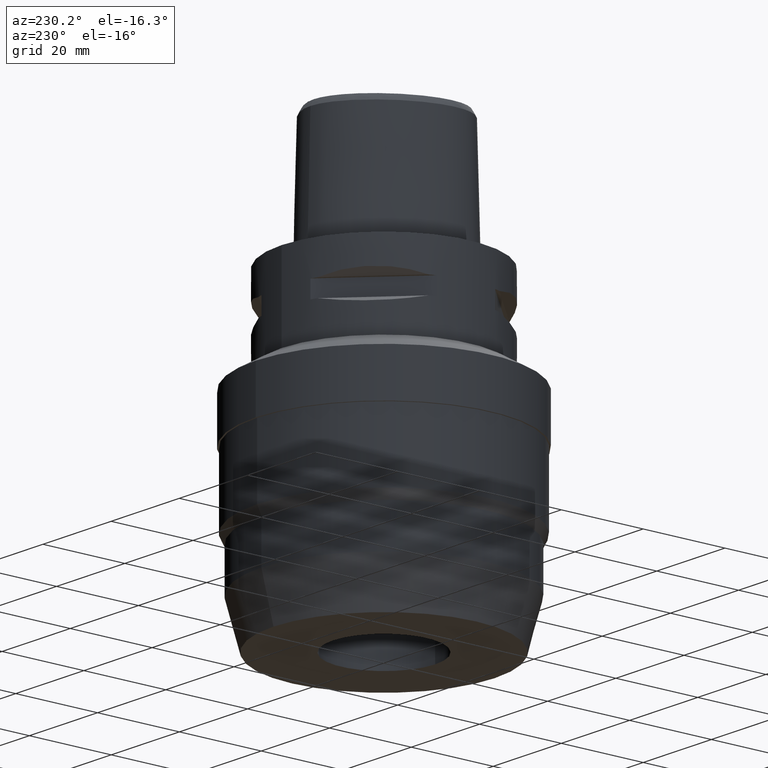
[diagram: clean part render]
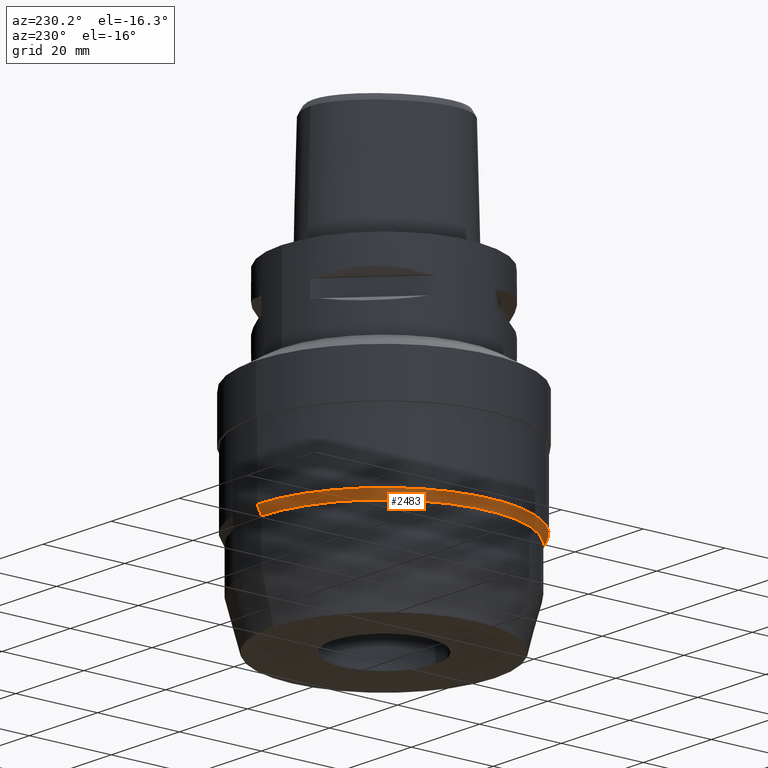
[diagram: same view with one face highlighted and labeled with its STEP entity id]
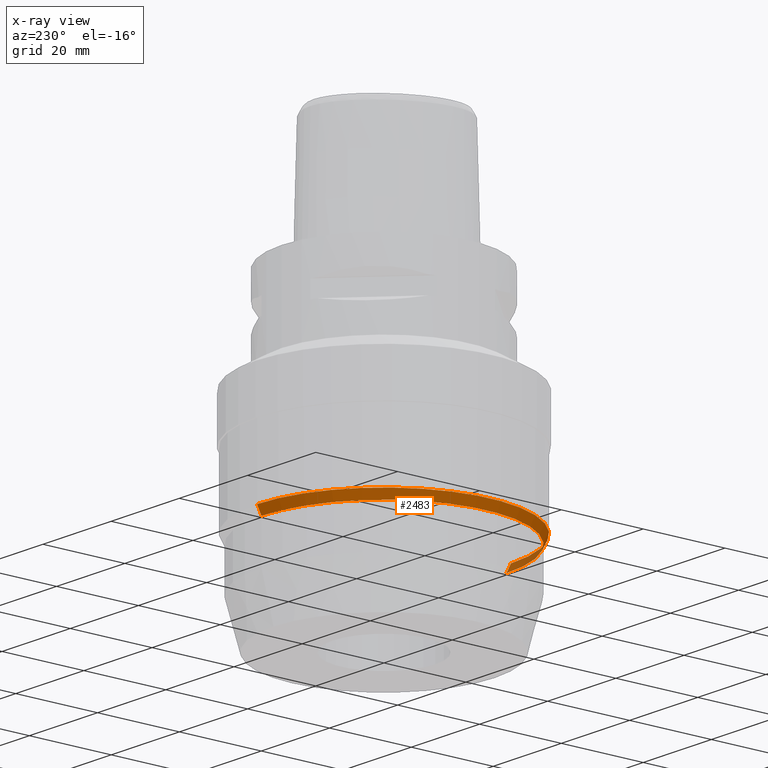
[diagram: x-ray of the same camera — body ghosted, the highlighted face saturated]
A machine part, auxiliary view. The second image highlights one B-rep face of the part: STEP entity #2483.
The next image is the same camera in x-ray: the body ghosted, the highlighted face saturated — about 6% of this face is hidden behind the body in this view.
In plain terms, the highlighted conical surface has half-angle 26.7 deg.
Its self-contained STEP definition (entity closure, byte-faithful):
#598=DIRECTION('',(0.E0,-4.493189986155E-1,-8.933713883280E-1));
#599=VECTOR('',#598,2.336869803494E0);
#600=CARTESIAN_POINT('',(0.E0,3.1E1,-5.181230737931E1));
#601=LINE('',#600,#599);
#621=CARTESIAN_POINT('',(0.E0,0.E0,-5.181230737931E1));
#622=DIRECTION('',(0.E0,0.E0,1.E0));
#623=DIRECTION('',(0.E0,1.E0,0.E0));
#624=AXIS2_PLACEMENT_3D('',#621,#622,#623);
#629=DIRECTION('',(0.E0,4.493189986155E-1,-8.933713883280E-1));
#630=VECTOR('',#629,2.336869803494E0);
#631=CARTESIAN_POINT('',(0.E0,-3.1E1,-5.181230737931E1));
#632=LINE('',#631,#630);
#636=CARTESIAN_POINT('',(0.E0,0.E0,-5.39E1));
#637=DIRECTION('',(0.E0,0.E0,-1.E0));
#638=DIRECTION('',(0.E0,-1.E0,0.E0));
#639=AXIS2_PLACEMENT_3D('',#636,#637,#638);
#1554=CARTESIAN_POINT('',(0.E0,3.1E1,-5.181230737931E1));
#1555=VERTEX_POINT('',#1554);
#1556=CARTESIAN_POINT('',(0.E0,-3.1E1,-5.181230737931E1));
#1557=VERTEX_POINT('',#1556);
#1558=CARTESIAN_POINT('',(0.E0,2.995E1,-5.39E1));
#1559=VERTEX_POINT('',#1558);
#1560=CARTESIAN_POINT('',(0.E0,-2.995E1,-5.39E1));
#1561=VERTEX_POINT('',#1560);
#2471=CARTESIAN_POINT('',(0.E0,0.E0,-5.285615368966E1));
#2472=DIRECTION('',(0.E0,0.E0,1.E0));
#2473=DIRECTION('',(0.E0,1.E0,0.E0));
#2474=AXIS2_PLACEMENT_3D('',#2471,#2472,#2473);
#2475=CONICAL_SURFACE('',#2474,3.0475E1,2.67E1);
#2476=ORIENTED_EDGE('',*,*,#2461,.F.);
#2477=ORIENTED_EDGE('',*,*,#2438,.T.);
#2478=ORIENTED_EDGE('',*,*,#2465,.T.);
#2480=ORIENTED_EDGE('',*,*,#2479,.T.);
#2481=EDGE_LOOP('',(#2476,#2477,#2478,#2480));
#2482=FACE_OUTER_BOUND('',#2481,.F.);
#625=CIRCLE('',#624,3.1E1);
#640=CIRCLE('',#639,2.995E1);
#2438=EDGE_CURVE('',#1555,#1557,#625,.T.);
#2461=EDGE_CURVE('',#1555,#1559,#601,.T.);
#2465=EDGE_CURVE('',#1557,#1561,#632,.T.);
#2479=EDGE_CURVE('',#1561,#1559,#640,.T.);
#2483=ADVANCED_FACE('',(#2482),#2475,.T.);